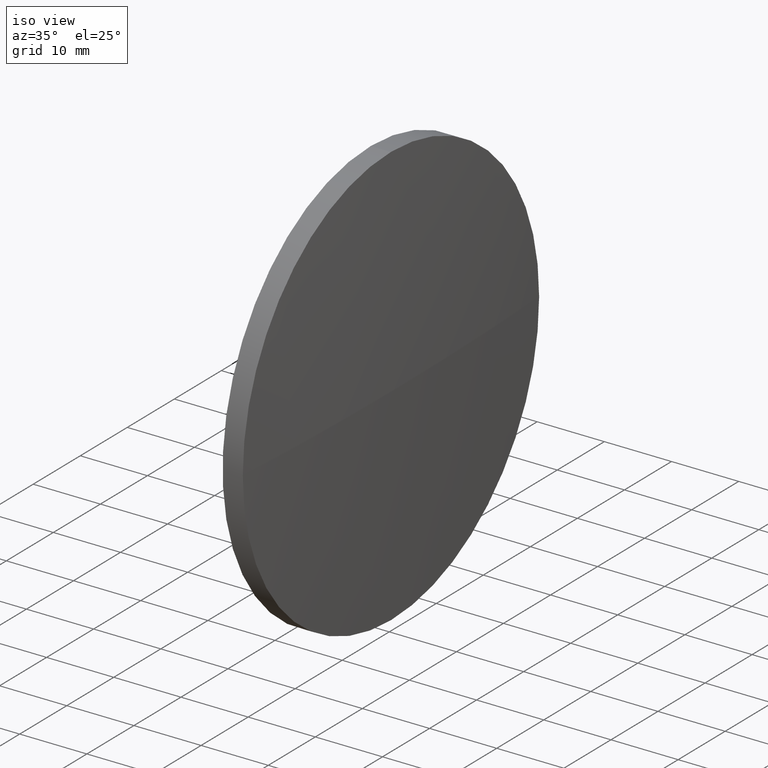
[diagram: clean part render]
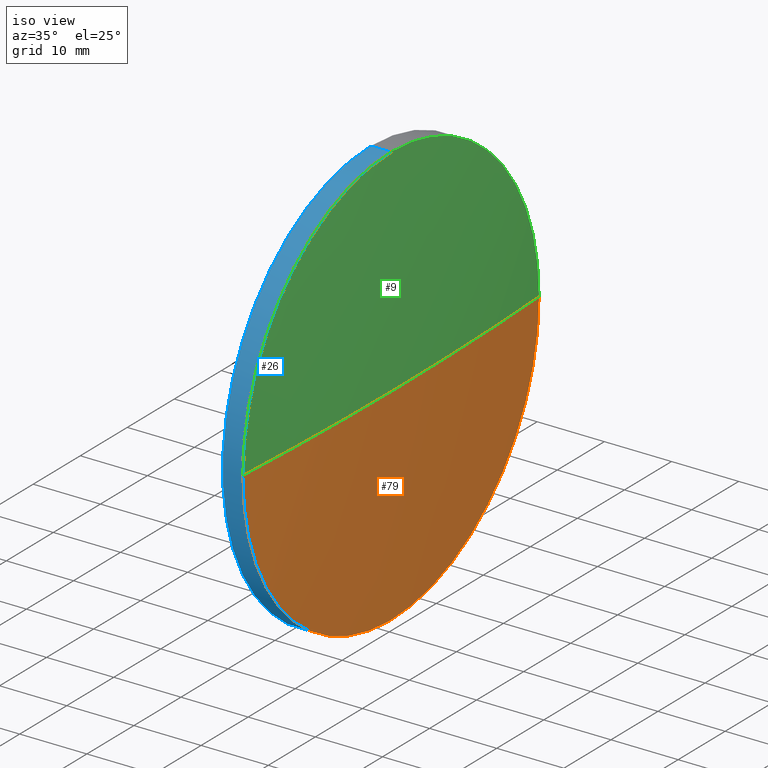
[diagram: same view with three faces highlighted in distinct colors, each labeled with its STEP entity id]
A machine part, iso view with three faces highlighted in distinct colors.
Their STEP definitions:

[orange] entity #79 — the highlighted spherical surface has radius 533.933 mm.
#3 = FACE_OUTER_BOUND ( 'NONE', #159, .T. ) ;
#7 = AXIS2_PLACEMENT_3D ( 'NONE', #115, #145, #131 ) ;
#10 = SPHERICAL_SURFACE ( 'NONE', #31, 533.9327419354799500 ) ;
#20 = EDGE_CURVE ( 'NONE', #90, #46, #137, .T. ) ;
#21 = DIRECTION ( 'NONE',  ( 0.0000000000000000000, 0.0000000000000000000, 1.000000000000000000 ) ) ;
#31 = AXIS2_PLACEMENT_3D ( 'NONE', #143, #63, #179 ) ;
#36 = CARTESIAN_POINT ( 'NONE',  ( -303.1094409340929000, 130.5185814569570700, 0.0000000000000000000 ) ) ;
#39 = EDGE_CURVE ( 'NONE', #77, #46, #82, .T. ) ;
#44 = AXIS2_PLACEMENT_3D ( 'NONE', #51, #71, #178 ) ;
#46 = VERTEX_POINT ( 'NONE', #102 ) ;
#48 = DIRECTION ( 'NONE',  ( -1.000000000000000000, 0.0000000000000000000, 0.0000000000000000000 ) ) ;
#50 = CARTESIAN_POINT ( 'NONE',  ( 229.8933010013870400, 130.5185814569561000, -31.50000000000000000 ) ) ;
#51 = CARTESIAN_POINT ( 'NONE',  ( 229.8933010013870400, 130.5185814569561000, 0.0000000000000000000 ) ) ;
#53 = AXIS2_PLACEMENT_3D ( 'NONE', #36, #74, #48 ) ;
#60 = ORIENTED_EDGE ( 'NONE', *, *, #39, .F. ) ;
#63 = DIRECTION ( 'NONE',  ( 0.0000000000000000000, 0.0000000000000000000, 1.000000000000000000 ) ) ;
#70 = ORIENTED_EDGE ( 'NONE', *, *, #20, .T. ) ;
#71 = DIRECTION ( 'NONE',  ( -1.000000000000000000, -0.0000000000000000000, -0.0000000000000000000 ) ) ;
#72 = DIRECTION ( 'NONE',  ( -1.000000000000000000, -0.0000000000000000000, -0.0000000000000000000 ) ) ;
#74 = DIRECTION ( 'NONE',  ( 0.0000000000000000000, 0.0000000000000000000, -1.000000000000000000 ) ) ;
#75 = CIRCLE ( 'NONE', #7, 533.9327419354799500 ) ;
#77 = VERTEX_POINT ( 'NONE', #50 ) ;
#79 = ADVANCED_FACE ( 'NONE', ( #3 ), #10, .T. ) ;
#82 = CIRCLE ( 'NONE', #83, 31.50000000000000000 ) ;
#83 = AXIS2_PLACEMENT_3D ( 'NONE', #160, #72, #21 ) ;
#86 = ORIENTED_EDGE ( 'NONE', *, *, #127, .F. ) ;
#90 = VERTEX_POINT ( 'NONE', #101 ) ;
#96 = CIRCLE ( 'NONE', #44, 31.50000000000000000 ) ;
#101 = CARTESIAN_POINT ( 'NONE',  ( 230.8233010013869900, 130.5185814569570400, 0.0000000000000000000 ) ) ;
#102 = CARTESIAN_POINT ( 'NONE',  ( 229.8933010013870200, 99.01858145695680900, 0.0000000000000000000 ) ) ;
#108 = ORIENTED_EDGE ( 'NONE', *, *, #138, .F. ) ;
#115 = CARTESIAN_POINT ( 'NONE',  ( -303.1094409340929000, 130.5185814569570700, 0.0000000000000000000 ) ) ;
#117 = VERTEX_POINT ( 'NONE', #165 ) ;
#127 = EDGE_CURVE ( 'NONE', #90, #117, #75, .T. ) ;
#131 = DIRECTION ( 'NONE',  ( 0.0000000000000000000, -1.000000000000000000, -1.224646799147353200E-016 ) ) ;
#137 = CIRCLE ( 'NONE', #53, 533.9327419354800700 ) ;
#138 = EDGE_CURVE ( 'NONE', #117, #77, #96, .T. ) ;
#143 = CARTESIAN_POINT ( 'NONE',  ( -303.1094409340929000, 130.5185814569570700, 0.0000000000000000000 ) ) ;
#145 = DIRECTION ( 'NONE',  ( 0.0000000000000000000, -1.224646799147353200E-016, 1.000000000000000000 ) ) ;
#159 = EDGE_LOOP ( 'NONE', ( #86, #70, #60, #108 ) ) ;
#160 = CARTESIAN_POINT ( 'NONE',  ( 229.8933010013870400, 130.5185814569561000, 0.0000000000000000000 ) ) ;
#165 = CARTESIAN_POINT ( 'NONE',  ( 229.8933010013870200, 162.0185814569563500, 3.857637417314076700E-015 ) ) ;
#178 = DIRECTION ( 'NONE',  ( 0.0000000000000000000, 0.0000000000000000000, 1.000000000000000000 ) ) ;
#179 = DIRECTION ( 'NONE',  ( 0.0000000000000000000, -1.000000000000000000, 0.0000000000000000000 ) ) ;

[blue] entity #26 — the highlighted cylindrical surface (partial cylindrical patch) has radius 31.5 mm, axis along (-1, -0, -0).
#1 = VECTOR ( 'NONE', #186, 1000.000000000000000 ) ;
#2 = EDGE_CURVE ( 'NONE', #151, #177, #49, .T. ) ;
#6 = ORIENTED_EDGE ( 'NONE', *, *, #154, .T. ) ;
#8 = CIRCLE ( 'NONE', #59, 31.50000000000000000 ) ;
#18 = DIRECTION ( 'NONE',  ( -1.000000000000000000, -0.0000000000000000000, -0.0000000000000000000 ) ) ;
#21 = DIRECTION ( 'NONE',  ( 0.0000000000000000000, 0.0000000000000000000, 1.000000000000000000 ) ) ;
#23 = VERTEX_POINT ( 'NONE', #126 ) ;
#26 = ADVANCED_FACE ( 'NONE', ( #181 ), #122, .T. ) ;
#30 = EDGE_CURVE ( 'NONE', #23, #177, #8, .T. ) ;
#32 = CARTESIAN_POINT ( 'NONE',  ( 218.1236667371545400, 130.5185814569561000, 31.50000000000000000 ) ) ;
#33 = ORIENTED_EDGE ( 'NONE', *, *, #2, .T. ) ;
#38 = CARTESIAN_POINT ( 'NONE',  ( 229.8933010013870400, 130.5185814569561000, 0.0000000000000000000 ) ) ;
#39 = EDGE_CURVE ( 'NONE', #77, #46, #82, .T. ) ;
#41 = CARTESIAN_POINT ( 'NONE',  ( 218.1236667371545400, 130.5185814569561000, -31.50000000000000000 ) ) ;
#46 = VERTEX_POINT ( 'NONE', #102 ) ;
#49 = LINE ( 'NONE', #32, #1 ) ;
#50 = CARTESIAN_POINT ( 'NONE',  ( 229.8933010013870400, 130.5185814569561000, -31.50000000000000000 ) ) ;
#54 = CARTESIAN_POINT ( 'NONE',  ( 226.8933010013870400, 130.5185814569561000, 0.0000000000000000000 ) ) ;
#59 = AXIS2_PLACEMENT_3D ( 'NONE', #54, #18, #61 ) ;
#61 = DIRECTION ( 'NONE',  ( 0.0000000000000000000, 0.0000000000000000000, 1.000000000000000000 ) ) ;
#65 = AXIS2_PLACEMENT_3D ( 'NONE', #38, #66, #183 ) ;
#66 = DIRECTION ( 'NONE',  ( -1.000000000000000000, -0.0000000000000000000, -0.0000000000000000000 ) ) ;
#68 = CIRCLE ( 'NONE', #65, 31.50000000000000000 ) ;
#69 = ORIENTED_EDGE ( 'NONE', *, *, #158, .F. ) ;
#72 = DIRECTION ( 'NONE',  ( -1.000000000000000000, -0.0000000000000000000, -0.0000000000000000000 ) ) ;
#77 = VERTEX_POINT ( 'NONE', #50 ) ;
#80 = ORIENTED_EDGE ( 'NONE', *, *, #39, .T. ) ;
#82 = CIRCLE ( 'NONE', #83, 31.50000000000000000 ) ;
#83 = AXIS2_PLACEMENT_3D ( 'NONE', #160, #72, #21 ) ;
#88 = DIRECTION ( 'NONE',  ( 0.0000000000000000000, 0.0000000000000000000, 1.000000000000000000 ) ) ;
#89 = CARTESIAN_POINT ( 'NONE',  ( 229.8933010013870400, 130.5185814569561000, 31.50000000000000000 ) ) ;
#93 = ORIENTED_EDGE ( 'NONE', *, *, #30, .F. ) ;
#102 = CARTESIAN_POINT ( 'NONE',  ( 229.8933010013870200, 99.01858145695680900, 0.0000000000000000000 ) ) ;
#122 = CYLINDRICAL_SURFACE ( 'NONE', #174, 31.50000000000000000 ) ;
#126 = CARTESIAN_POINT ( 'NONE',  ( 226.8933010013870400, 130.5185814569561000, -31.50000000000000000 ) ) ;
#128 = VECTOR ( 'NONE', #147, 1000.000000000000000 ) ;
#130 = CARTESIAN_POINT ( 'NONE',  ( 218.1236667371545400, 130.5185814569561000, 0.0000000000000000000 ) ) ;
#147 = DIRECTION ( 'NONE',  ( -1.000000000000000000, -0.0000000000000000000, -0.0000000000000000000 ) ) ;
#151 = VERTEX_POINT ( 'NONE', #89 ) ;
#154 = EDGE_CURVE ( 'NONE', #46, #151, #68, .T. ) ;
#158 = EDGE_CURVE ( 'NONE', #77, #23, #175, .T. ) ;
#160 = CARTESIAN_POINT ( 'NONE',  ( 229.8933010013870400, 130.5185814569561000, 0.0000000000000000000 ) ) ;
#164 = DIRECTION ( 'NONE',  ( -1.000000000000000000, -0.0000000000000000000, -0.0000000000000000000 ) ) ;
#169 = CARTESIAN_POINT ( 'NONE',  ( 226.8933010013870400, 130.5185814569561000, 31.50000000000000000 ) ) ;
#173 = EDGE_LOOP ( 'NONE', ( #69, #80, #6, #33, #93 ) ) ;
#174 = AXIS2_PLACEMENT_3D ( 'NONE', #130, #164, #88 ) ;
#175 = LINE ( 'NONE', #41, #128 ) ;
#177 = VERTEX_POINT ( 'NONE', #169 ) ;
#181 = FACE_OUTER_BOUND ( 'NONE', #173, .T. ) ;
#183 = DIRECTION ( 'NONE',  ( 0.0000000000000000000, 0.0000000000000000000, 1.000000000000000000 ) ) ;
#186 = DIRECTION ( 'NONE',  ( -1.000000000000000000, -0.0000000000000000000, -0.0000000000000000000 ) ) ;

[green] entity #9 — the highlighted spherical surface has radius 533.933 mm.
#7 = AXIS2_PLACEMENT_3D ( 'NONE', #115, #145, #131 ) ;
#9 = ADVANCED_FACE ( 'NONE', ( #113 ), #78, .T. ) ;
#12 = ORIENTED_EDGE ( 'NONE', *, *, #139, .F. ) ;
#14 = ORIENTED_EDGE ( 'NONE', *, *, #127, .T. ) ;
#15 = CARTESIAN_POINT ( 'NONE',  ( -303.1094409340929000, 130.5185814569570700, 0.0000000000000000000 ) ) ;
#17 = DIRECTION ( 'NONE',  ( -1.000000000000000000, -0.0000000000000000000, -0.0000000000000000000 ) ) ;
#20 = EDGE_CURVE ( 'NONE', #90, #46, #137, .T. ) ;
#25 = CIRCLE ( 'NONE', #156, 31.50000000000000000 ) ;
#36 = CARTESIAN_POINT ( 'NONE',  ( -303.1094409340929000, 130.5185814569570700, 0.0000000000000000000 ) ) ;
#38 = CARTESIAN_POINT ( 'NONE',  ( 229.8933010013870400, 130.5185814569561000, 0.0000000000000000000 ) ) ;
#42 = ORIENTED_EDGE ( 'NONE', *, *, #154, .F. ) ;
#46 = VERTEX_POINT ( 'NONE', #102 ) ;
#48 = DIRECTION ( 'NONE',  ( -1.000000000000000000, 0.0000000000000000000, 0.0000000000000000000 ) ) ;
#53 = AXIS2_PLACEMENT_3D ( 'NONE', #36, #74, #48 ) ;
#56 = DIRECTION ( 'NONE',  ( 0.0000000000000000000, 0.0000000000000000000, 1.000000000000000000 ) ) ;
#65 = AXIS2_PLACEMENT_3D ( 'NONE', #38, #66, #183 ) ;
#66 = DIRECTION ( 'NONE',  ( -1.000000000000000000, -0.0000000000000000000, -0.0000000000000000000 ) ) ;
#68 = CIRCLE ( 'NONE', #65, 31.50000000000000000 ) ;
#74 = DIRECTION ( 'NONE',  ( 0.0000000000000000000, 0.0000000000000000000, -1.000000000000000000 ) ) ;
#75 = CIRCLE ( 'NONE', #7, 533.9327419354799500 ) ;
#78 = SPHERICAL_SURFACE ( 'NONE', #182, 533.9327419354799500 ) ;
#81 = DIRECTION ( 'NONE',  ( 0.0000000000000000000, 0.0000000000000000000, 1.000000000000000000 ) ) ;
#89 = CARTESIAN_POINT ( 'NONE',  ( 229.8933010013870400, 130.5185814569561000, 31.50000000000000000 ) ) ;
#90 = VERTEX_POINT ( 'NONE', #101 ) ;
#95 = ORIENTED_EDGE ( 'NONE', *, *, #20, .F. ) ;
#98 = CARTESIAN_POINT ( 'NONE',  ( 229.8933010013870400, 130.5185814569561000, 0.0000000000000000000 ) ) ;
#101 = CARTESIAN_POINT ( 'NONE',  ( 230.8233010013869900, 130.5185814569570400, 0.0000000000000000000 ) ) ;
#102 = CARTESIAN_POINT ( 'NONE',  ( 229.8933010013870200, 99.01858145695680900, 0.0000000000000000000 ) ) ;
#110 = DIRECTION ( 'NONE',  ( 0.0000000000000000000, -1.000000000000000000, 0.0000000000000000000 ) ) ;
#113 = FACE_OUTER_BOUND ( 'NONE', #166, .T. ) ;
#115 = CARTESIAN_POINT ( 'NONE',  ( -303.1094409340929000, 130.5185814569570700, 0.0000000000000000000 ) ) ;
#117 = VERTEX_POINT ( 'NONE', #165 ) ;
#127 = EDGE_CURVE ( 'NONE', #90, #117, #75, .T. ) ;
#131 = DIRECTION ( 'NONE',  ( 0.0000000000000000000, -1.000000000000000000, -1.224646799147353200E-016 ) ) ;
#137 = CIRCLE ( 'NONE', #53, 533.9327419354800700 ) ;
#139 = EDGE_CURVE ( 'NONE', #151, #117, #25, .T. ) ;
#145 = DIRECTION ( 'NONE',  ( 0.0000000000000000000, -1.224646799147353200E-016, 1.000000000000000000 ) ) ;
#151 = VERTEX_POINT ( 'NONE', #89 ) ;
#154 = EDGE_CURVE ( 'NONE', #46, #151, #68, .T. ) ;
#156 = AXIS2_PLACEMENT_3D ( 'NONE', #98, #17, #56 ) ;
#165 = CARTESIAN_POINT ( 'NONE',  ( 229.8933010013870200, 162.0185814569563500, 3.857637417314076700E-015 ) ) ;
#166 = EDGE_LOOP ( 'NONE', ( #95, #14, #12, #42 ) ) ;
#182 = AXIS2_PLACEMENT_3D ( 'NONE', #15, #81, #110 ) ;
#183 = DIRECTION ( 'NONE',  ( 0.0000000000000000000, 0.0000000000000000000, 1.000000000000000000 ) ) ;